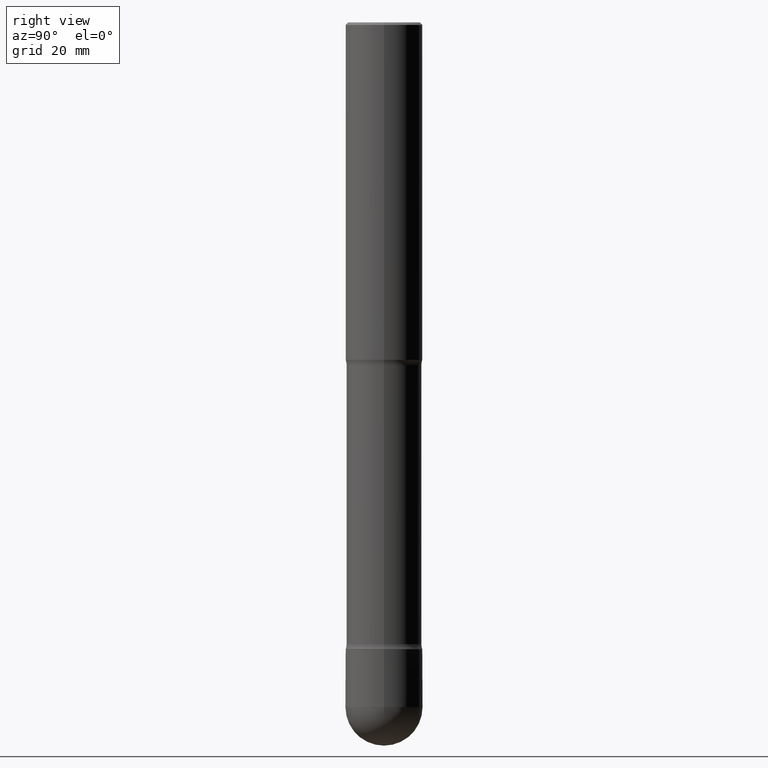
[diagram: clean part render]
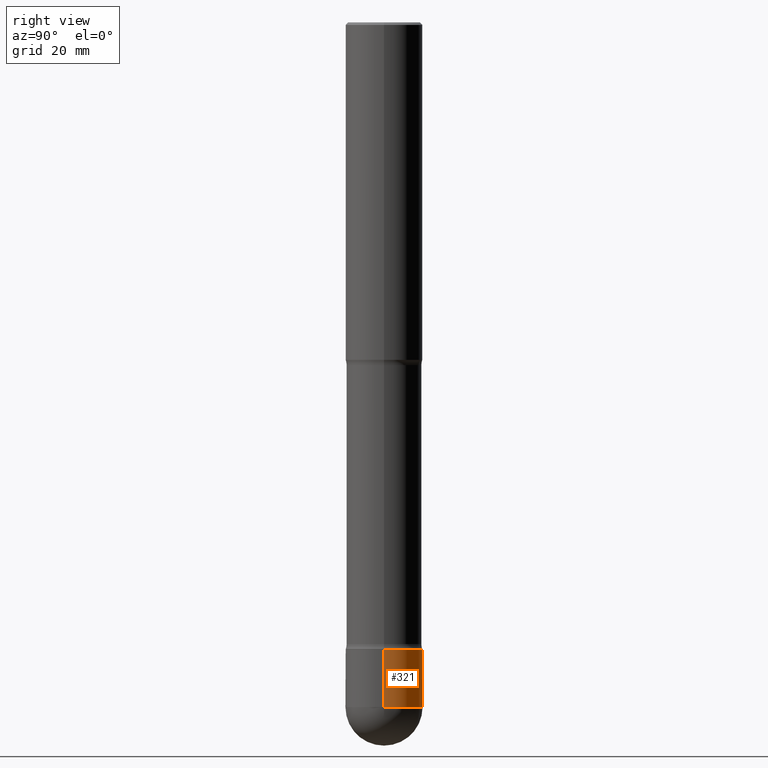
[diagram: same view with one face highlighted and labeled with its STEP entity id]
A machine part, right view. The second image highlights one B-rep face of the part: STEP entity #321.
In plain terms, the highlighted cylindrical surface (partial cylindrical patch) has radius 7.9997 mm, axis along (-0, 0, 1).
Its self-contained STEP definition (entity closure, byte-faithful):
#12 = ORIENTED_EDGE ( 'NONE', *, *, #88, .T. ) ;
#17 = CIRCLE ( 'NONE', #182, 0.3149499999999990640 ) ;
#34 = CARTESIAN_POINT ( 'NONE',  ( 0.3149499999999990085, -2.089380991493860711E-14, -5.590549999999999464 ) ) ;
#38 = DIRECTION ( 'NONE',  ( -2.445468806185136597E-29, 3.491481338843145583E-15, 1.000000000000000000 ) ) ;
#67 = FACE_OUTER_BOUND ( 'NONE', #428, .T. ) ;
#77 = EDGE_CURVE ( 'NONE', #322, #370, #359, .T. ) ;
#88 = EDGE_CURVE ( 'NONE', #370, #284, #468, .T. ) ;
#101 = EDGE_CURVE ( 'NONE', #394, #476, #199, .T. ) ;
#120 = CARTESIAN_POINT ( 'NONE',  ( 0.000000000000000000, 0.000000000000000000, 0.000000000000000000 ) ) ;
#123 = DIRECTION ( 'NONE',  ( 1.000000000000000000, -6.982962677686261977E-15, 0.000000000000000000 ) ) ;
#146 = CARTESIAN_POINT ( 'NONE',  ( 0.3149499999999990640, -2.006903473567038758E-14, -5.118099999999999206 ) ) ;
#158 = DIRECTION ( 'NONE',  ( -2.445468806185136597E-29, 3.491481338843145583E-15, 1.000000000000000000 ) ) ;
#167 = DIRECTION ( 'NONE',  ( -2.445468806185136877E-29, 3.491481338843145188E-15, 1.000000000000000000 ) ) ;
#177 = EDGE_CURVE ( 'NONE', #476, #284, #17, .T. ) ;
#182 = AXIS2_PLACEMENT_3D ( 'NONE', #373, #158, #295 ) ;
#199 = LINE ( 'NONE', #293, #267 ) ;
#202 = ORIENTED_EDGE ( 'NONE', *, *, #526, .T. ) ;
#208 = ORIENTED_EDGE ( 'NONE', *, *, #177, .F. ) ;
#212 = AXIS2_PLACEMENT_3D ( 'NONE', #512, #519, #338 ) ;
#255 = CARTESIAN_POINT ( 'NONE',  ( 2.199284095337421611E-15, 0.3149499999999798017, -5.590550000000000352 ) ) ;
#265 = CARTESIAN_POINT ( 'NONE',  ( -0.3149499999999990085, -1.645667147332489546E-14, -5.590549999999999464 ) ) ;
#267 = VECTOR ( 'NONE', #343, 39.37007874015748143 ) ;
#271 = CYLINDRICAL_SURFACE ( 'NONE', #477, 0.3149499999999990640 ) ;
#284 = VERTEX_POINT ( 'NONE', #495 ) ;
#293 = CARTESIAN_POINT ( 'NONE',  ( 0.3149499999999990640, -2.199284095337283166E-15, 1.535751875536925365E-29 ) ) ;
#295 = DIRECTION ( 'NONE',  ( 1.000000000000000000, -6.982962677686273021E-15, 0.000000000000000000 ) ) ;
#297 = ORIENTED_EDGE ( 'NONE', *, *, #101, .F. ) ;
#321 = ADVANCED_FACE ( 'NONE', ( #67 ), #271, .T. ) ;
#322 = VERTEX_POINT ( 'NONE', #255 ) ;
#335 = CARTESIAN_POINT ( 'NONE',  ( -0.3149499999999990640, 2.237854346276428885E-15, -1.549218606675777912E-29 ) ) ;
#338 = DIRECTION ( 'NONE',  ( 1.000000000000000000, -6.982962677686261977E-15, 0.000000000000000000 ) ) ;
#343 = DIRECTION ( 'NONE',  ( -2.445468806185136877E-29, 3.491481338843145188E-15, 1.000000000000000000 ) ) ;
#359 = CIRCLE ( 'NONE', #523, 0.3149499999999990085 ) ;
#370 = VERTEX_POINT ( 'NONE', #265 ) ;
#373 = CARTESIAN_POINT ( 'NONE',  ( 1.251615389693614574E-28, -1.786975064033310244E-14, -5.118099999999999206 ) ) ;
#394 = VERTEX_POINT ( 'NONE', #34 ) ;
#422 = DIRECTION ( 'NONE',  ( 1.000000000000000000, -6.982962677686266711E-15, 4.876176775795935793E-29 ) ) ;
#426 = CARTESIAN_POINT ( 'NONE',  ( 1.367151563441831346E-28, -1.951930099886954466E-14, -5.590549999999999464 ) ) ;
#428 = EDGE_LOOP ( 'NONE', ( #460, #12, #208, #297, #202 ) ) ;
#455 = CIRCLE ( 'NONE', #212, 0.3149499999999990085 ) ;
#460 = ORIENTED_EDGE ( 'NONE', *, *, #77, .T. ) ;
#468 = LINE ( 'NONE', #335, #482 ) ;
#476 = VERTEX_POINT ( 'NONE', #146 ) ;
#477 = AXIS2_PLACEMENT_3D ( 'NONE', #120, #38, #422 ) ;
#482 = VECTOR ( 'NONE', #167, 39.37007874015748143 ) ;
#495 = CARTESIAN_POINT ( 'NONE',  ( -0.3149499999999990640, -1.645667147332489546E-14, -5.118099999999999206 ) ) ;
#501 = DIRECTION ( 'NONE',  ( -2.445468806185136597E-29, 3.491481338843145583E-15, 1.000000000000000000 ) ) ;
#512 = CARTESIAN_POINT ( 'NONE',  ( 1.367151563441831346E-28, -1.951930099886954466E-14, -5.590549999999999464 ) ) ;
#519 = DIRECTION ( 'NONE',  ( -2.445468806185136597E-29, 3.491481338843145583E-15, 1.000000000000000000 ) ) ;
#523 = AXIS2_PLACEMENT_3D ( 'NONE', #426, #501, #123 ) ;
#526 = EDGE_CURVE ( 'NONE', #394, #322, #455, .T. ) ;